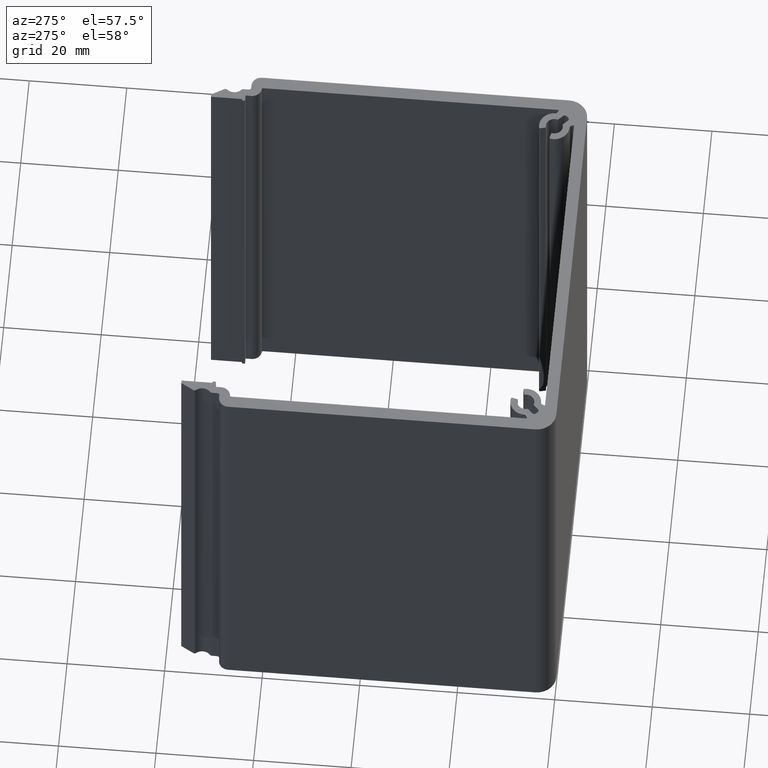
[diagram: clean part render]
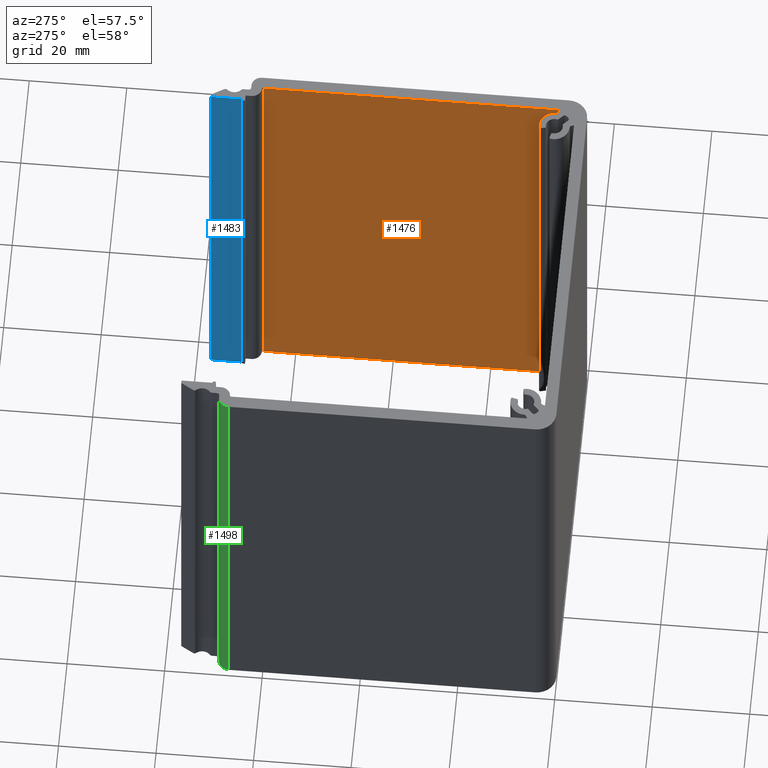
[diagram: same view with three faces highlighted in distinct colors, each labeled with its STEP entity id]
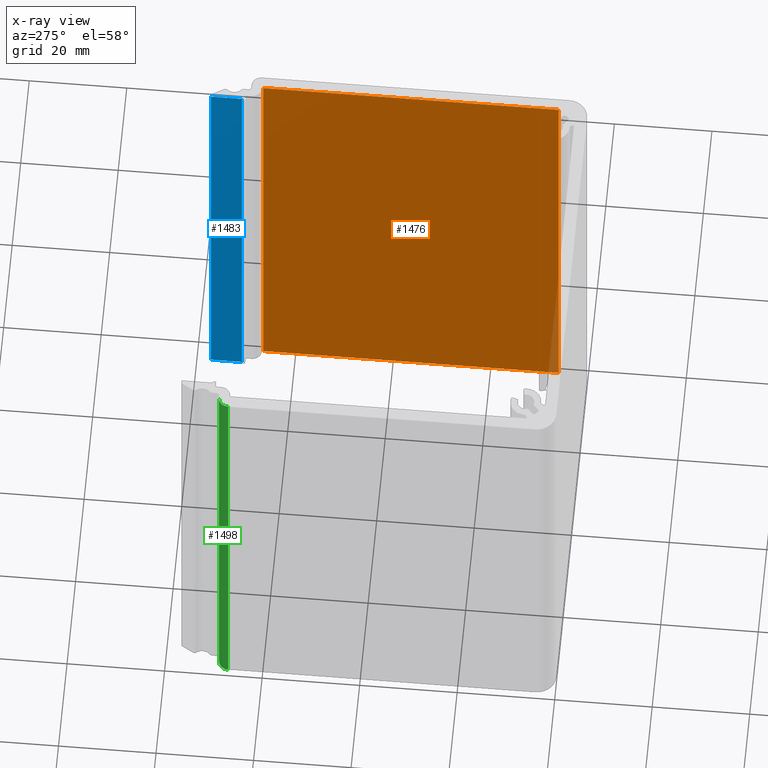
[diagram: x-ray of the same camera — body ghosted, the three highlighted faces saturated]
A machine part, auxiliary view with three faces highlighted in distinct colors.
The next image is the same camera in x-ray (body ghosted, the three faces saturated) — at least one of them is partly hidden behind the body in this view.
Their STEP definitions:

[orange] entity #1476 — the highlighted planar face has unit normal (-1, 0, 0).
#38=PLANE('',#1602);
#102=FACE_OUTER_BOUND('',#178,.T.);
#178=EDGE_LOOP('',(#1137,#1138,#1139,#1140));
#300=LINE('',#2388,#450);
#301=LINE('',#2391,#451);
#302=LINE('',#2393,#452);
#303=LINE('',#2394,#453);
#450=VECTOR('',#1940,100.);
#451=VECTOR('',#1943,60.5452272878981);
#452=VECTOR('',#1944,60.5452272878981);
#453=VECTOR('',#1945,100.);
#673=VERTEX_POINT('',#2384);
#674=VERTEX_POINT('',#2386);
#675=VERTEX_POINT('',#2390);
#676=VERTEX_POINT('',#2392);
#868=EDGE_CURVE('',#673,#674,#300,.T.);
#869=EDGE_CURVE('',#675,#673,#301,.T.);
#870=EDGE_CURVE('',#676,#674,#302,.T.);
#871=EDGE_CURVE('',#675,#676,#303,.T.);
#1137=ORIENTED_EDGE('',*,*,#869,.T.);
#1138=ORIENTED_EDGE('',*,*,#868,.T.);
#1139=ORIENTED_EDGE('',*,*,#870,.F.);
#1140=ORIENTED_EDGE('',*,*,#871,.F.);
#1476=ADVANCED_FACE('',(#102),#38,.T.);
#1602=AXIS2_PLACEMENT_3D('',#2389,#1941,#1942);
#1940=DIRECTION('',(0.,0.,1.));
#1941=DIRECTION('center_axis',(-1.,0.,0.));
#1942=DIRECTION('ref_axis',(0.,-1.,0.));
#1943=DIRECTION('',(0.,-1.,0.));
#1944=DIRECTION('',(0.,-1.,0.));
#1945=DIRECTION('',(0.,0.,1.));
#2384=CARTESIAN_POINT('',(37.4999999991572,5.9547727119675,0.));
#2386=CARTESIAN_POINT('',(37.4999999991572,5.9547727119675,100.));
#2388=CARTESIAN_POINT('',(37.4999999991572,5.9547727119675,0.));
#2389=CARTESIAN_POINT('Origin',(37.4999999991572,66.4999999998656,0.));
#2390=CARTESIAN_POINT('',(37.4999999991572,66.4999999998656,0.));
#2391=CARTESIAN_POINT('',(37.4999999991572,66.4999999998656,0.));
#2392=CARTESIAN_POINT('',(37.4999999991572,66.4999999998656,100.));
#2393=CARTESIAN_POINT('',(37.4999999991572,66.4999999998656,100.));
#2394=CARTESIAN_POINT('',(37.4999999991572,66.4999999998656,0.));

[blue] entity #1483 — the highlighted planar face has unit normal (-1, -0, 0).
#43=PLANE('',#1613);
#109=FACE_OUTER_BOUND('',#185,.T.);
#185=EDGE_LOOP('',(#1165,#1166,#1167,#1168));
#317=LINE('',#2430,#467);
#318=LINE('',#2433,#468);
#319=LINE('',#2435,#469);
#320=LINE('',#2436,#470);
#467=VECTOR('',#1979,100.);
#468=VECTOR('',#1982,6.32731081240866);
#469=VECTOR('',#1983,6.32731081240866);
#470=VECTOR('',#1984,100.);
#687=VERTEX_POINT('',#2426);
#688=VERTEX_POINT('',#2428);
#689=VERTEX_POINT('',#2432);
#690=VERTEX_POINT('',#2434);
#889=EDGE_CURVE('',#687,#688,#317,.T.);
#890=EDGE_CURVE('',#689,#687,#318,.T.);
#891=EDGE_CURVE('',#690,#688,#319,.T.);
#892=EDGE_CURVE('',#689,#690,#320,.T.);
#1165=ORIENTED_EDGE('',*,*,#890,.T.);
#1166=ORIENTED_EDGE('',*,*,#889,.T.);
#1167=ORIENTED_EDGE('',*,*,#891,.F.);
#1168=ORIENTED_EDGE('',*,*,#892,.F.);
#1483=ADVANCED_FACE('',(#109),#43,.T.);
#1613=AXIS2_PLACEMENT_3D('',#2431,#1980,#1981);
#1979=DIRECTION('',(0.,0.,1.));
#1980=DIRECTION('center_axis',(-1.,-8.52768019237736E-11,0.));
#1981=DIRECTION('ref_axis',(8.52764969749842E-11,-1.,0.));
#1982=DIRECTION('',(8.52768019237736E-11,-1.,0.));
#1983=DIRECTION('',(8.52768019237736E-11,-1.,0.));
#1984=DIRECTION('',(0.,0.,1.));
#2426=CARTESIAN_POINT('',(34.4999999921086,70.6726891864307,0.));
#2428=CARTESIAN_POINT('',(34.4999999921086,70.6726891864307,100.));
#2430=CARTESIAN_POINT('',(34.4999999921086,70.6726891864307,0.));
#2431=CARTESIAN_POINT('Origin',(34.499999991569,76.9999999988394,0.));
#2432=CARTESIAN_POINT('',(34.499999991569,76.9999999988394,0.));
#2433=CARTESIAN_POINT('',(34.499999991569,76.9999999988394,0.));
#2434=CARTESIAN_POINT('',(34.499999991569,76.9999999988394,100.));
#2435=CARTESIAN_POINT('',(34.499999991569,76.9999999988394,100.));
#2436=CARTESIAN_POINT('',(34.499999991569,76.9999999988394,0.));

[green] entity #1498 — the highlighted cylindrical surface (edge-blend (fillet) strip) has radius 2 mm, axis along (0, 0, 1).
#124=FACE_OUTER_BOUND('',#200,.T.);
#200=EDGE_LOOP('',(#1225,#1226,#1227,#1228));
#348=LINE('',#2520,#498);
#349=LINE('',#2526,#499);
#498=VECTOR('',#2068,100.);
#499=VECTOR('',#2075,100.);
#573=CIRCLE('',#1643,2.00000000810225);
#574=CIRCLE('',#1644,2.00000000810225);
#717=VERTEX_POINT('',#2516);
#718=VERTEX_POINT('',#2518);
#719=VERTEX_POINT('',#2522);
#720=VERTEX_POINT('',#2524);
#934=EDGE_CURVE('',#717,#718,#348,.T.);
#935=EDGE_CURVE('',#719,#717,#573,.T.);
#936=EDGE_CURVE('',#720,#718,#574,.T.);
#937=EDGE_CURVE('',#719,#720,#349,.T.);
#1225=ORIENTED_EDGE('',*,*,#935,.T.);
#1226=ORIENTED_EDGE('',*,*,#934,.T.);
#1227=ORIENTED_EDGE('',*,*,#936,.F.);
#1228=ORIENTED_EDGE('',*,*,#937,.F.);
#1426=CYLINDRICAL_SURFACE('',#1642,2.00000000810225);
#1498=ADVANCED_FACE('',(#124),#1426,.T.);
#1642=AXIS2_PLACEMENT_3D('',#2521,#2069,#2070);
#1643=AXIS2_PLACEMENT_3D('',#2523,#2071,#2072);
#1644=AXIS2_PLACEMENT_3D('',#2525,#2073,#2074);
#2068=DIRECTION('',(0.,0.,1.));
#2069=DIRECTION('center_axis',(0.,0.,1.));
#2070=DIRECTION('ref_axis',(-4.22415434252075E-10,1.,0.));
#2071=DIRECTION('center_axis',(0.,0.,1.));
#2072=DIRECTION('ref_axis',(-4.22415434252075E-10,1.,0.));
#2073=DIRECTION('center_axis',(0.,0.,1.));
#2074=DIRECTION('ref_axis',(-4.22415434252075E-10,1.,0.));
#2075=DIRECTION('',(0.,0.,1.));
#2516=CARTESIAN_POINT('',(-39.9999999991639,66.9999999917754,0.));
#2518=CARTESIAN_POINT('',(-39.9999999991639,66.9999999917754,100.));
#2520=CARTESIAN_POINT('',(-39.9999999991639,66.9999999917754,0.));
#2521=CARTESIAN_POINT('Origin',(-37.9999999910617,66.9999999917754,0.));
#2522=CARTESIAN_POINT('',(-37.9999999919065,68.9999999998776,0.));
#2523=CARTESIAN_POINT('Origin',(-37.9999999910617,66.9999999917754,0.));
#2524=CARTESIAN_POINT('',(-37.9999999919065,68.9999999998776,100.));
#2525=CARTESIAN_POINT('Origin',(-37.9999999910617,66.9999999917754,100.));
#2526=CARTESIAN_POINT('',(-37.9999999919065,68.9999999998776,0.));